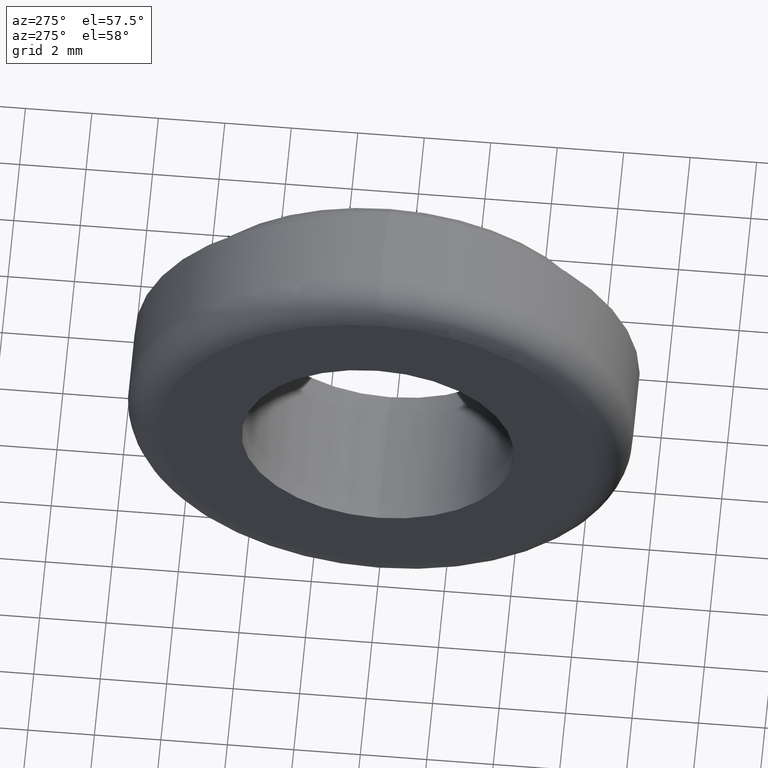
[diagram: clean part render]
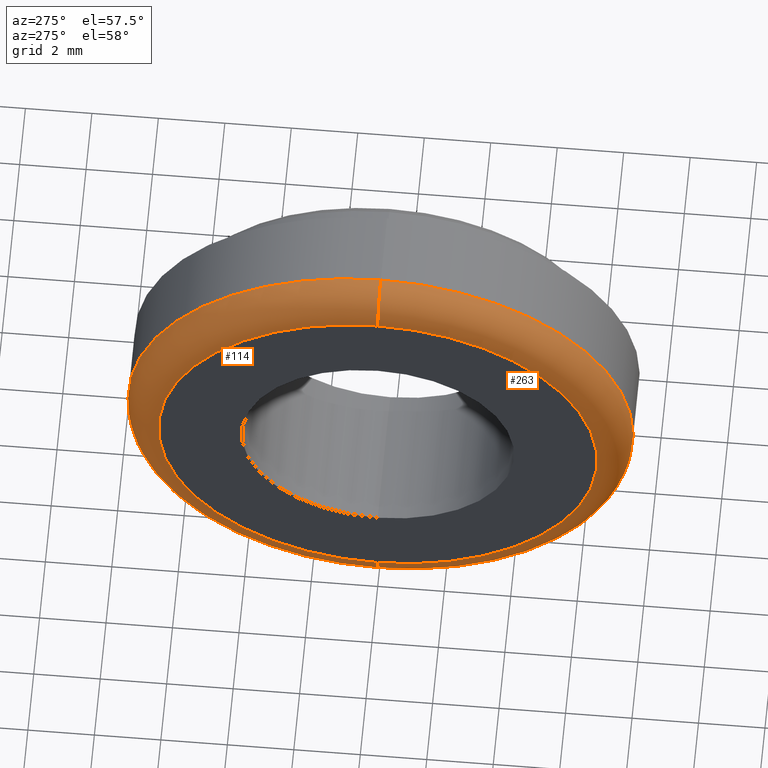
[diagram: same view with one multi-face feature highlighted, each face labeled with its STEP entity id]
A machine part, auxiliary view. The highlighted faces form ONE feature: a constant-radius fillet chain: 2 tangent blend faces with common blend radius 1 mm. The faces share edges in the B-rep.
Their STEP definitions:
[1] entity #114 (Torus):
#16 = EDGE_CURVE ( 'NONE', #224, #535, #350, .T. ) ;
#20 = DIRECTION ( 'NONE',  ( 0.0000000000000000000, 1.000000000000000000, -1.224646799147353200E-016 ) ) ;
#28 = CARTESIAN_POINT ( 'NONE',  ( 1.000000000000000000, 8.082668874372531000E-016, 6.599999999999999600 ) ) ;
#34 = ORIENTED_EDGE ( 'NONE', *, *, #701, .F. ) ;
#49 = AXIS2_PLACEMENT_3D ( 'NONE', #352, #212, #319 ) ;
#52 = DIRECTION ( 'NONE',  ( 1.000000000000000000, 0.0000000000000000000, 0.0000000000000000000 ) ) ;
#84 = AXIS2_PLACEMENT_3D ( 'NONE', #571, #52, #248 ) ;
#101 = FACE_OUTER_BOUND ( 'NONE', #225, .T. ) ;
#114 = ADVANCED_FACE ( 'NONE', ( #101 ), #215, .T. ) ;
#115 = EDGE_CURVE ( 'NONE', #224, #619, #478, .T. ) ;
#121 = CARTESIAN_POINT ( 'NONE',  ( 0.0000000000000000000, 0.0000000000000000000, -6.599999999999999600 ) ) ;
#176 = CARTESIAN_POINT ( 'NONE',  ( 0.0000000000000000000, 0.0000000000000000000, 0.0000000000000000000 ) ) ;
#190 = CIRCLE ( 'NONE', #681, 1.000000000000000000 ) ;
#204 = CARTESIAN_POINT ( 'NONE',  ( 1.000000000000000000, 0.0000000000000000000, -6.599999999999999600 ) ) ;
#206 = AXIS2_PLACEMENT_3D ( 'NONE', #176, #238, #531 ) ;
#212 = DIRECTION ( 'NONE',  ( 1.000000000000000000, 0.0000000000000000000, 0.0000000000000000000 ) ) ;
#215 = TOROIDAL_SURFACE ( 'NONE', #49, 6.599999999999999600, 1.000000000000000000 ) ;
#224 = VERTEX_POINT ( 'NONE', #294 ) ;
#225 = EDGE_LOOP ( 'NONE', ( #476, #495, #310, #34 ) ) ;
#238 = DIRECTION ( 'NONE',  ( -1.000000000000000000, -0.0000000000000000000, -0.0000000000000000000 ) ) ;
#248 = DIRECTION ( 'NONE',  ( 0.0000000000000000000, 0.0000000000000000000, -1.000000000000000000 ) ) ;
#257 = CARTESIAN_POINT ( 'NONE',  ( 1.000000000000000000, 0.0000000000000000000, 7.599999999999999600 ) ) ;
#294 = CARTESIAN_POINT ( 'NONE',  ( 0.0000000000000000000, 8.694992273946207700E-016, 6.599999999999999600 ) ) ;
#310 = ORIENTED_EDGE ( 'NONE', *, *, #484, .F. ) ;
#319 = DIRECTION ( 'NONE',  ( 0.0000000000000000000, 0.0000000000000000000, -1.000000000000000000 ) ) ;
#350 = CIRCLE ( 'NONE', #408, 1.000000000000000000 ) ;
#352 = CARTESIAN_POINT ( 'NONE',  ( 1.000000000000000000, 0.0000000000000000000, 0.0000000000000000000 ) ) ;
#357 = DIRECTION ( 'NONE',  ( 0.0000000000000000000, -1.000000000000000000, 0.0000000000000000000 ) ) ;
#408 = AXIS2_PLACEMENT_3D ( 'NONE', #28, #20, #613 ) ;
#452 = DIRECTION ( 'NONE',  ( 0.0000000000000000000, 0.0000000000000000000, -1.000000000000000000 ) ) ;
#476 = ORIENTED_EDGE ( 'NONE', *, *, #115, .F. ) ;
#478 = CIRCLE ( 'NONE', #206, 6.599999999999999600 ) ;
#484 = EDGE_CURVE ( 'NONE', #630, #535, #645, .T. ) ;
#495 = ORIENTED_EDGE ( 'NONE', *, *, #16, .T. ) ;
#531 = DIRECTION ( 'NONE',  ( 0.0000000000000000000, 0.0000000000000000000, -1.000000000000000000 ) ) ;
#535 = VERTEX_POINT ( 'NONE', #257 ) ;
#545 = CARTESIAN_POINT ( 'NONE',  ( 1.000000000000000000, 9.307315673519885500E-016, -7.599999999999999600 ) ) ;
#571 = CARTESIAN_POINT ( 'NONE',  ( 1.000000000000000000, 0.0000000000000000000, 0.0000000000000000000 ) ) ;
#613 = DIRECTION ( 'NONE',  ( 0.0000000000000000000, 1.224646799147353500E-016, 1.000000000000000000 ) ) ;
#619 = VERTEX_POINT ( 'NONE', #121 ) ;
#630 = VERTEX_POINT ( 'NONE', #545 ) ;
#645 = CIRCLE ( 'NONE', #84, 7.599999999999999600 ) ;
#681 = AXIS2_PLACEMENT_3D ( 'NONE', #204, #357, #452 ) ;
#701 = EDGE_CURVE ( 'NONE', #619, #630, #190, .T. ) ;
[2] entity #263 (Torus):
#1 = AXIS2_PLACEMENT_3D ( 'NONE', #80, #31, #284 ) ;
#16 = EDGE_CURVE ( 'NONE', #224, #535, #350, .T. ) ;
#20 = DIRECTION ( 'NONE',  ( 0.0000000000000000000, 1.000000000000000000, -1.224646799147353200E-016 ) ) ;
#28 = CARTESIAN_POINT ( 'NONE',  ( 1.000000000000000000, 8.082668874372531000E-016, 6.599999999999999600 ) ) ;
#31 = DIRECTION ( 'NONE',  ( 1.000000000000000000, 0.0000000000000000000, 0.0000000000000000000 ) ) ;
#67 = EDGE_CURVE ( 'NONE', #535, #630, #686, .T. ) ;
#71 = DIRECTION ( 'NONE',  ( -1.000000000000000000, -0.0000000000000000000, -0.0000000000000000000 ) ) ;
#80 = CARTESIAN_POINT ( 'NONE',  ( 1.000000000000000000, 0.0000000000000000000, 0.0000000000000000000 ) ) ;
#121 = CARTESIAN_POINT ( 'NONE',  ( 0.0000000000000000000, 0.0000000000000000000, -6.599999999999999600 ) ) ;
#140 = ORIENTED_EDGE ( 'NONE', *, *, #67, .F. ) ;
#149 = TOROIDAL_SURFACE ( 'NONE', #1, 6.599999999999999600, 1.000000000000000000 ) ;
#190 = CIRCLE ( 'NONE', #681, 1.000000000000000000 ) ;
#204 = CARTESIAN_POINT ( 'NONE',  ( 1.000000000000000000, 0.0000000000000000000, -6.599999999999999600 ) ) ;
#217 = DIRECTION ( 'NONE',  ( 0.0000000000000000000, 0.0000000000000000000, -1.000000000000000000 ) ) ;
#224 = VERTEX_POINT ( 'NONE', #294 ) ;
#257 = CARTESIAN_POINT ( 'NONE',  ( 1.000000000000000000, 0.0000000000000000000, 7.599999999999999600 ) ) ;
#263 = ADVANCED_FACE ( 'NONE', ( #727 ), #149, .T. ) ;
#265 = AXIS2_PLACEMENT_3D ( 'NONE', #682, #71, #217 ) ;
#284 = DIRECTION ( 'NONE',  ( 0.0000000000000000000, 0.0000000000000000000, -1.000000000000000000 ) ) ;
#289 = ORIENTED_EDGE ( 'NONE', *, *, #16, .F. ) ;
#294 = CARTESIAN_POINT ( 'NONE',  ( 0.0000000000000000000, 8.694992273946207700E-016, 6.599999999999999600 ) ) ;
#306 = DIRECTION ( 'NONE',  ( 1.000000000000000000, 0.0000000000000000000, 0.0000000000000000000 ) ) ;
#329 = DIRECTION ( 'NONE',  ( 0.0000000000000000000, 0.0000000000000000000, -1.000000000000000000 ) ) ;
#350 = CIRCLE ( 'NONE', #408, 1.000000000000000000 ) ;
#357 = DIRECTION ( 'NONE',  ( 0.0000000000000000000, -1.000000000000000000, 0.0000000000000000000 ) ) ;
#408 = AXIS2_PLACEMENT_3D ( 'NONE', #28, #20, #613 ) ;
#444 = CARTESIAN_POINT ( 'NONE',  ( 1.000000000000000000, 0.0000000000000000000, 0.0000000000000000000 ) ) ;
#452 = DIRECTION ( 'NONE',  ( 0.0000000000000000000, 0.0000000000000000000, -1.000000000000000000 ) ) ;
#462 = ORIENTED_EDGE ( 'NONE', *, *, #569, .F. ) ;
#480 = EDGE_LOOP ( 'NONE', ( #289, #462, #726, #140 ) ) ;
#492 = AXIS2_PLACEMENT_3D ( 'NONE', #444, #306, #329 ) ;
#535 = VERTEX_POINT ( 'NONE', #257 ) ;
#545 = CARTESIAN_POINT ( 'NONE',  ( 1.000000000000000000, 9.307315673519885500E-016, -7.599999999999999600 ) ) ;
#569 = EDGE_CURVE ( 'NONE', #619, #224, #659, .T. ) ;
#613 = DIRECTION ( 'NONE',  ( 0.0000000000000000000, 1.224646799147353500E-016, 1.000000000000000000 ) ) ;
#619 = VERTEX_POINT ( 'NONE', #121 ) ;
#630 = VERTEX_POINT ( 'NONE', #545 ) ;
#659 = CIRCLE ( 'NONE', #265, 6.599999999999999600 ) ;
#681 = AXIS2_PLACEMENT_3D ( 'NONE', #204, #357, #452 ) ;
#682 = CARTESIAN_POINT ( 'NONE',  ( 0.0000000000000000000, 0.0000000000000000000, 0.0000000000000000000 ) ) ;
#686 = CIRCLE ( 'NONE', #492, 7.599999999999999600 ) ;
#701 = EDGE_CURVE ( 'NONE', #619, #630, #190, .T. ) ;
#726 = ORIENTED_EDGE ( 'NONE', *, *, #701, .T. ) ;
#727 = FACE_OUTER_BOUND ( 'NONE', #480, .T. ) ;